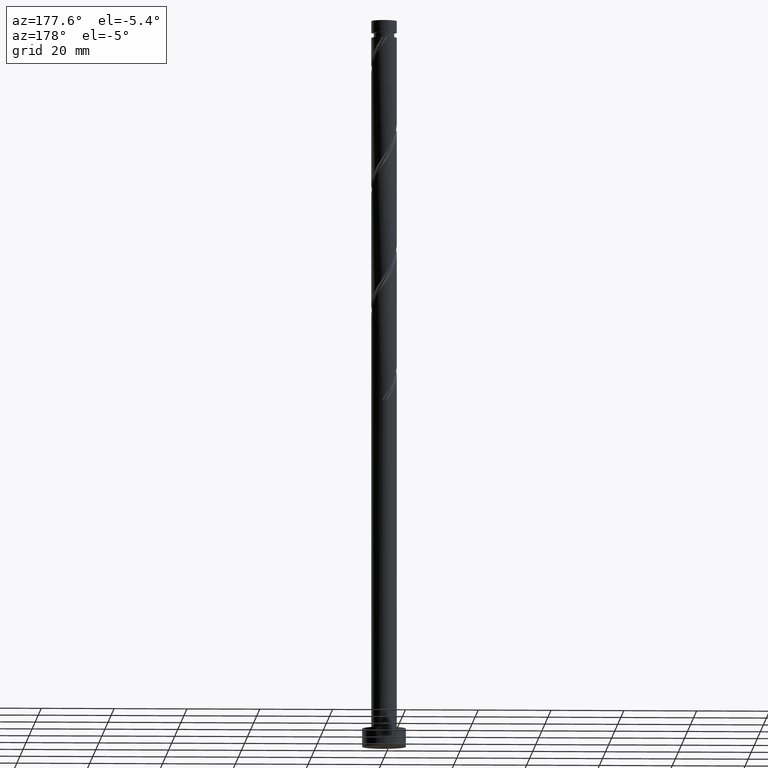
[diagram: clean part render]
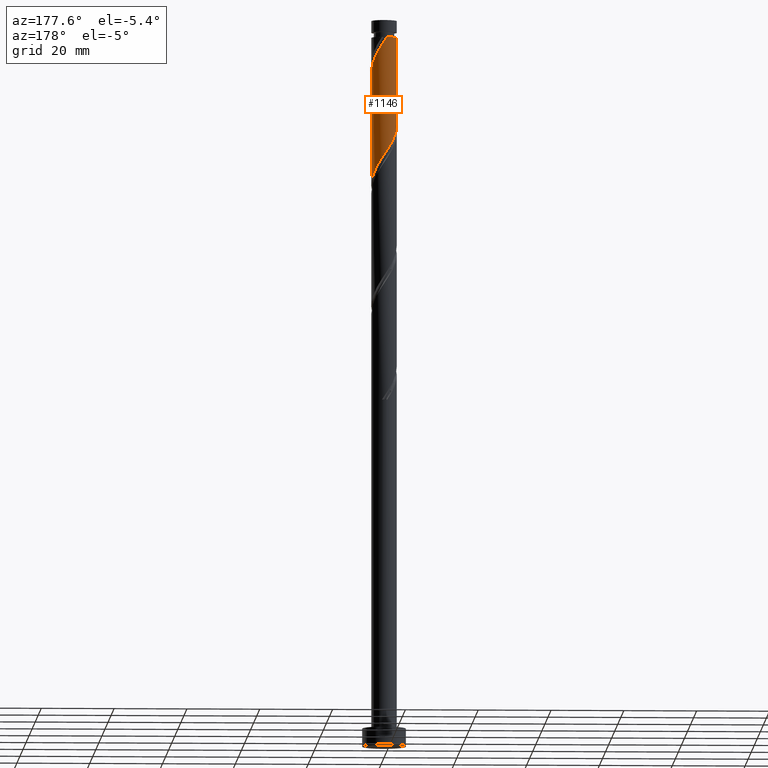
[diagram: same view with one face highlighted and labeled with its STEP entity id]
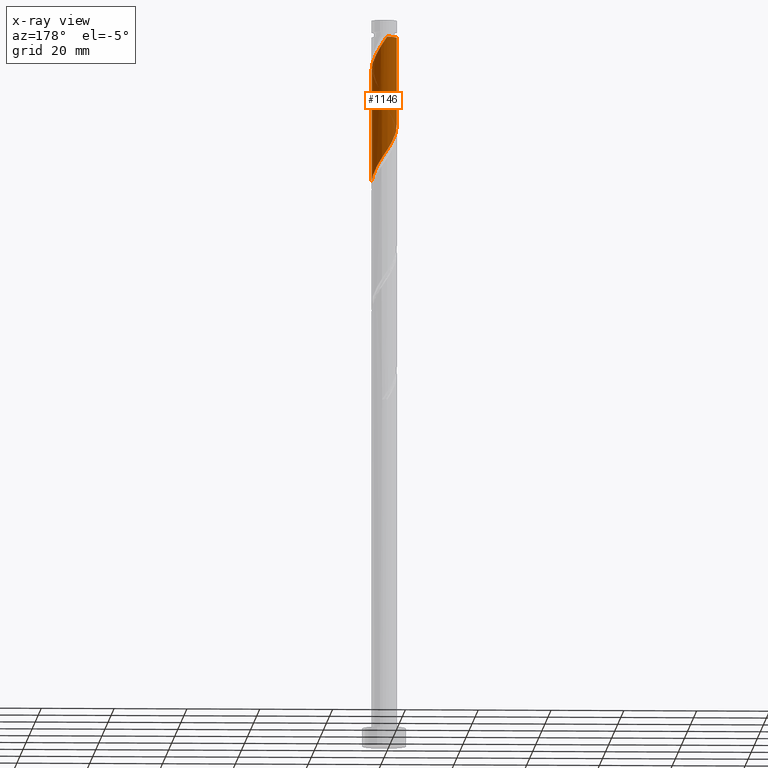
[diagram: x-ray of the same camera — body ghosted, the highlighted face saturated]
A machine part, auxiliary view. The second image highlights one B-rep face of the part: STEP entity #1146.
The next image is the same camera in x-ray: the body ghosted, the highlighted face saturated — about 0% of this face is hidden behind the body in this view.
In plain terms, the highlighted cylindrical surface (edge-blend (fillet) strip) has radius 3.5 mm, axis along (-0, -0, -1).
Its self-contained STEP definition (entity closure, byte-faithful):
#25 = CARTESIAN_POINT ( 'NONE',  ( 3.500000000000005773, 0.3517632353407181278, 186.5229223447590812 ) ) ;
#71 = EDGE_CURVE ( 'NONE', #896, #1473, #1522, .T. ) ;
#116 =( BOUNDED_CURVE ( )  B_SPLINE_CURVE ( 2, ( #511, #406, #1189, #535, #953, #962, #1334, #1353, #253, #260, #821, #1599, #1620, #1503, #1475, #931, #1725, #1458, #827, #1060, #684, #529, #1610, #269, #1486, #126, #143 ),
 .UNSPECIFIED., .F., .T. ) 
 B_SPLINE_CURVE_WITH_KNOTS ( ( 3, 2, 2, 2, 2, 2, 2, 2, 2, 2, 2, 2, 2, 3 ),
 ( 0.4295317669814463502, 0.4375000000000000000, 0.4479166666666666852, 0.4583333333333333148, 0.4687500000000000000, 0.4791666666666666852, 0.4895833333333333148, 0.5000000000000000000, 0.5104166666666666297, 0.5208333333333333703, 0.5312500000000000000, 0.5416666666666666297, 0.5520833333333333703, 0.5545317669814464612 ),
 .UNSPECIFIED. ) 
 CURVE ( )  GEOMETRIC_REPRESENTATION_ITEM ( )  RATIONAL_B_SPLINE_CURVE ( ( 0.9062941362546426127, 0.9031415850403469170, 0.9090909090909222723, 0.9013135103398406400, 0.9090909090909222723, 0.9013135103398406400, 0.9090909090909222723, 0.9013135103398406400, 0.9090909090909222723, 0.9013135103398406400, 0.9090909090909222723, 0.9013135103398406400, 0.9090909090909222723, 0.9013135103398406400, 0.9090909090909222723, 0.9013135103398406400, 0.9090909090909222723, 0.9013135103398406400, 0.9090909090909222723, 0.9013135103398406400, 0.9090909090909222723, 0.9013135103398406400, 0.9090909090909222723, 0.9013135103398406400, 0.9090909090909222723, 0.9072628343904158843, 0.9062941362546423907 ) ) 
 REPRESENTATION_ITEM ( '' )  );
#126 = CARTESIAN_POINT ( 'NONE',  ( 3.500000000000000888, 0.1075968308018480230, 154.9464596406848216 ) ) ;
#139 = DIRECTION ( 'NONE',  ( -0.000000000000000000, -0.000000000000000000, -1.000000000000000000 ) ) ;
#143 = CARTESIAN_POINT ( 'NONE',  ( 3.500000000000000000, 4.516042901973274995E-15, 154.7832959526566583 ) ) ;
#148 = CARTESIAN_POINT ( 'NONE',  ( -3.500000000000000444, -1.629962504354592569E-15, 171.4499626193233155 ) ) ;
#176 = AXIS2_PLACEMENT_3D ( 'NONE', #1494, #139, #281 ) ;
#178 = CARTESIAN_POINT ( 'NONE',  ( 1.932882604688401118, 2.917869914251323138, 191.2197292974466052 ) ) ;
#181 = CARTESIAN_POINT ( 'NONE',  ( -3.500000000000000000, 0.000000000000000000, 200.0000000000000000 ) ) ;
#253 = CARTESIAN_POINT ( 'NONE',  ( -1.932882604688397121, 2.917869914251320029, 166.2197292974466336 ) ) ;
#260 = CARTESIAN_POINT ( 'NONE',  ( -1.548737742842089427, 3.172338736701778128, 165.5252848530021481 ) ) ;
#269 = CARTESIAN_POINT ( 'NONE',  ( 3.465086739234107593, 0.6749041013849192971, 155.8030626307799196 ) ) ;
#281 = DIRECTION ( 'NONE',  ( -1.000000000000000000, 0.000000000000000000, 0.000000000000000000 ) ) ;
#284 = EDGE_CURVE ( 'NONE', #1268, #1124, #362, .T. ) ;
#286 = CARTESIAN_POINT ( 'NONE',  ( 2.927415597451915374, 1.972957063972127667, 189.1363959641132340 ) ) ;
#339 = CARTESIAN_POINT ( 'NONE',  ( 3.500000000000000000, 4.286263797015736595E-16, 200.0000000000000000 ) ) ;
#347 = VECTOR ( 'NONE', #1252, 1000.000000000000000 ) ;
#362 =( BOUNDED_CURVE ( )  B_SPLINE_CURVE ( 2, ( #1362, #25, #1250, #709, #1235, #286, #1533, #1382, #178, #988, #848, #1400, #1011, #1370, #1260 ),
 .UNSPECIFIED., .F., .T. ) 
 B_SPLINE_CURVE_WITH_KNOTS ( ( 3, 2, 2, 2, 2, 2, 2, 3 ),
 ( 0.6795317669814461281, 0.6875000000000000000, 0.6979166666666667407, 0.7083333333333332593, 0.7187500000000000000, 0.7291666666666667407, 0.7395833333333332593, 0.7500000000000000000 ),
 .UNSPECIFIED. ) 
 CURVE ( )  GEOMETRIC_REPRESENTATION_ITEM ( )  RATIONAL_B_SPLINE_CURVE ( ( 0.9062941362546484969, 0.9031415850403525791, 0.9090909090909279344, 0.9013135103398465242, 0.9090909090909279344, 0.9013135103398465242, 0.9090909090909279344, 0.9013135103398465242, 0.9090909090909279344, 0.9013135103398465242, 0.9090909090909279344, 0.9013135103398465242, 0.9090909090909279344, 0.9013135103398465242, 0.9090909090909279344 ) ) 
 REPRESENTATION_ITEM ( '' )  );
#406 = CARTESIAN_POINT ( 'NONE',  ( -3.500000000000000888, 0.3517632353407293411, 170.9165362501340724 ) ) ;
#415 = FACE_OUTER_BOUND ( 'NONE', #1071, .T. ) ;
#428 = CARTESIAN_POINT ( 'NONE',  ( 3.500000000000000000, 4.516042901973274995E-15, 154.7832959526566583 ) ) ;
#511 = CARTESIAN_POINT ( 'NONE',  ( -3.500000000000000444, -1.629962504354592569E-15, 171.4499626193233439 ) ) ;
#529 = CARTESIAN_POINT ( 'NONE',  ( 3.172338736701779016, 1.548737742842087428, 157.1919515196688337 ) ) ;
#535 = CARTESIAN_POINT ( 'NONE',  ( -3.338305193185781672, 1.148059272699403222, 169.6919515196688053 ) ) ;
#544 = ORIENTED_EDGE ( 'NONE', *, *, #979, .F. ) ;
#546 = CARTESIAN_POINT ( 'NONE',  ( 0.000000000000000000, 0.000000000000000000, 200.0000000000000000 ) ) ;
#684 = CARTESIAN_POINT ( 'NONE',  ( 2.917869914251320029, 1.932882604688396011, 157.8863959641132340 ) ) ;
#695 = ORIENTED_EDGE ( 'NONE', *, *, #284, .F. ) ;
#709 = CARTESIAN_POINT ( 'NONE',  ( 3.338305193185786557, 1.148059272699402777, 187.7475070752243198 ) ) ;
#727 = AXIS2_PLACEMENT_3D ( 'NONE', #546, #1343, #1076 ) ;
#733 = LINE ( 'NONE', #339, #1110 ) ;
#791 = VERTEX_POINT ( 'NONE', #428 ) ;
#811 = CARTESIAN_POINT ( 'NONE',  ( -0.6964912059719337023, 3.429999999973127434, 195.3863959641132340 ) ) ;
#821 = CARTESIAN_POINT ( 'NONE',  ( -1.111820922113505361, 3.318712737967942861, 164.8308404085576910 ) ) ;
#827 = CARTESIAN_POINT ( 'NONE',  ( 2.318179077886495687, 2.622221531993305543, 159.2752848530021197 ) ) ;
#848 = CARTESIAN_POINT ( 'NONE',  ( 1.111820922113509580, 3.318712737967945969, 192.6086181863355478 ) ) ;
#868 = EDGE_CURVE ( 'NONE', #1268, #791, #733, .T. ) ;
#896 = VERTEX_POINT ( 'NONE', #1523 ) ;
#931 = CARTESIAN_POINT ( 'NONE',  ( 1.148059272699406774, 3.338305193185780340, 161.3586181863354341 ) ) ;
#953 = CARTESIAN_POINT ( 'NONE',  ( -3.132860395318845192, 1.560508168335765999, 168.9975070752243766 ) ) ;
#962 = CARTESIAN_POINT ( 'NONE',  ( -2.927415597451910045, 1.972957063972128333, 168.3030626307798627 ) ) ;
#964 = ORIENTED_EDGE ( 'NONE', *, *, #1433, .T. ) ;
#979 = EDGE_CURVE ( 'NONE', #1473, #791, #116, .T. ) ;
#988 = CARTESIAN_POINT ( 'NONE',  ( 1.548737742842093867, 3.172338736701780793, 191.9141737418909770 ) ) ;
#1011 = CARTESIAN_POINT ( 'NONE',  ( 0.2149904810675306865, 3.493390773024166229, 193.9975070752244051 ) ) ;
#1060 = CARTESIAN_POINT ( 'NONE',  ( 2.663401091800862375, 2.317027466534702818, 158.5808404085577195 ) ) ;
#1071 = EDGE_LOOP ( 'NONE', ( #695, #1530, #544, #1542, #964 ) ) ;
#1076 = DIRECTION ( 'NONE',  ( -1.000000000000000000, 0.000000000000000000, 0.000000000000000000 ) ) ;
#1110 = VECTOR ( 'NONE', #1669, 1000.000000000000000 ) ;
#1124 = VERTEX_POINT ( 'NONE', #811 ) ;
#1127 = CARTESIAN_POINT ( 'NONE',  ( 3.500000000000004441, -6.280589466320408853E-16, 185.9894959755698665 ) ) ;
#1146 = ADVANCED_FACE ( 'NONE', ( #415 ), #1363, .T. ) ;
#1189 = CARTESIAN_POINT ( 'NONE',  ( -3.429999999999999272, 0.6964912059746354300, 170.3863959641132624 ) ) ;
#1235 = CARTESIAN_POINT ( 'NONE',  ( 3.132860395318851410, 1.560508168335765555, 188.4419515196688053 ) ) ;
#1250 = CARTESIAN_POINT ( 'NONE',  ( 3.430000000000004601, 0.6964912059746350970, 187.0530626307799480 ) ) ;
#1252 = DIRECTION ( 'NONE',  ( -0.000000000000000000, -0.000000000000000000, -1.000000000000000000 ) ) ;
#1260 = CARTESIAN_POINT ( 'NONE',  ( -0.6964912059719337023, 3.429999999973127434, 195.3863959641132340 ) ) ;
#1268 = VERTEX_POINT ( 'NONE', #1127 ) ;
#1334 = CARTESIAN_POINT ( 'NONE',  ( -2.622221531993306876, 2.318179077886495243, 167.6086181863354909 ) ) ;
#1343 = DIRECTION ( 'NONE',  ( -0.000000000000000000, -0.000000000000000000, -1.000000000000000000 ) ) ;
#1353 = CARTESIAN_POINT ( 'NONE',  ( -2.317027466534702818, 2.663401091800861487, 166.9141737418910623 ) ) ;
#1362 = CARTESIAN_POINT ( 'NONE',  ( 3.500000000000004441, -6.280589466320408853E-16, 185.9894959755698380 ) ) ;
#1363 = CYLINDRICAL_SURFACE ( 'NONE', #727, 3.500000000000000000 ) ;
#1370 = CARTESIAN_POINT ( 'NONE',  ( -0.2449231392498637250, 3.521694806814221756, 194.6919515196687485 ) ) ;
#1382 = CARTESIAN_POINT ( 'NONE',  ( 2.317027466534709035, 2.663401091800861487, 190.5252848530020628 ) ) ;
#1400 = CARTESIAN_POINT ( 'NONE',  ( 0.6749041013849248483, 3.465086739234110258, 193.3030626307799196 ) ) ;
#1417 = CIRCLE ( 'NONE', #176, 3.499999999999988454 ) ;
#1433 = EDGE_CURVE ( 'NONE', #896, #1124, #1417, .T. ) ;
#1458 = CARTESIAN_POINT ( 'NONE',  ( 1.972957063972129665, 2.927415597451909157, 159.9697292974466052 ) ) ;
#1473 = VERTEX_POINT ( 'NONE', #148 ) ;
#1475 = CARTESIAN_POINT ( 'NONE',  ( 0.6964912059746359851, 3.429999999999999272, 162.0530626307799196 ) ) ;
#1486 = CARTESIAN_POINT ( 'NONE',  ( 3.493390773024163121, 0.2149904810675252742, 155.1086181863354909 ) ) ;
#1494 = CARTESIAN_POINT ( 'NONE',  ( 0.000000000000000000, 0.000000000000000000, 195.3863959641132624 ) ) ;
#1503 = CARTESIAN_POINT ( 'NONE',  ( 0.2449231392498675275, 3.521694806814218204, 162.7475070752243482 ) ) ;
#1522 = LINE ( 'NONE', #181, #347 ) ;
#1523 = CARTESIAN_POINT ( 'NONE',  ( -3.499999999999988454, 0.000000000000000000, 195.3863959641132624 ) ) ;
#1530 = ORIENTED_EDGE ( 'NONE', *, *, #868, .T. ) ;
#1533 = CARTESIAN_POINT ( 'NONE',  ( 2.622221531993312205, 2.318179077886495687, 189.8308404085577479 ) ) ;
#1542 = ORIENTED_EDGE ( 'NONE', *, *, #71, .F. ) ;
#1599 = CARTESIAN_POINT ( 'NONE',  ( -0.6749041013849211845, 3.465086739234106705, 164.1363959641132908 ) ) ;
#1610 = CARTESIAN_POINT ( 'NONE',  ( 3.318712737967942861, 1.111820922113503141, 156.4975070752243482 ) ) ;
#1620 = CARTESIAN_POINT ( 'NONE',  ( -0.2149904810675269118, 3.493390773024163121, 163.4419515196688053 ) ) ;
#1669 = DIRECTION ( 'NONE',  ( -0.000000000000000000, -0.000000000000000000, -1.000000000000000000 ) ) ;
#1725 = CARTESIAN_POINT ( 'NONE',  ( 1.560508168335767332, 3.132860395318844748, 160.6641737418910338 ) ) ;